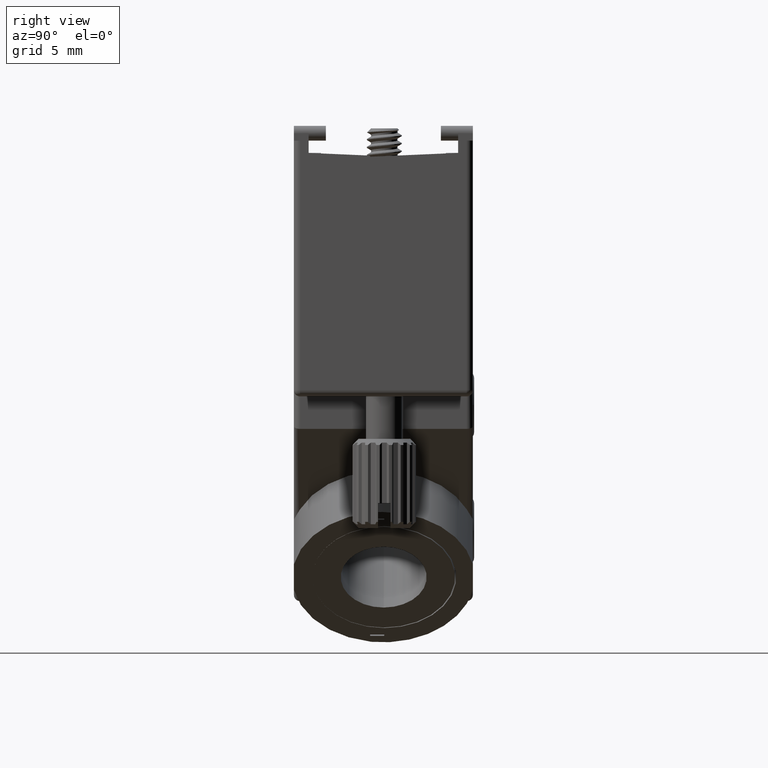
[diagram: clean part render]
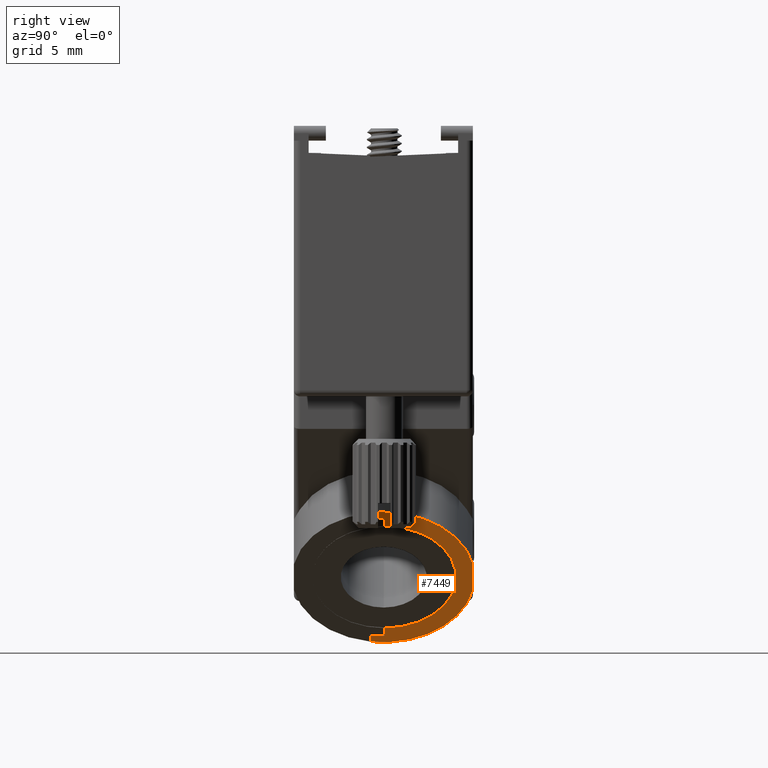
[diagram: same view with one face highlighted and labeled with its STEP entity id]
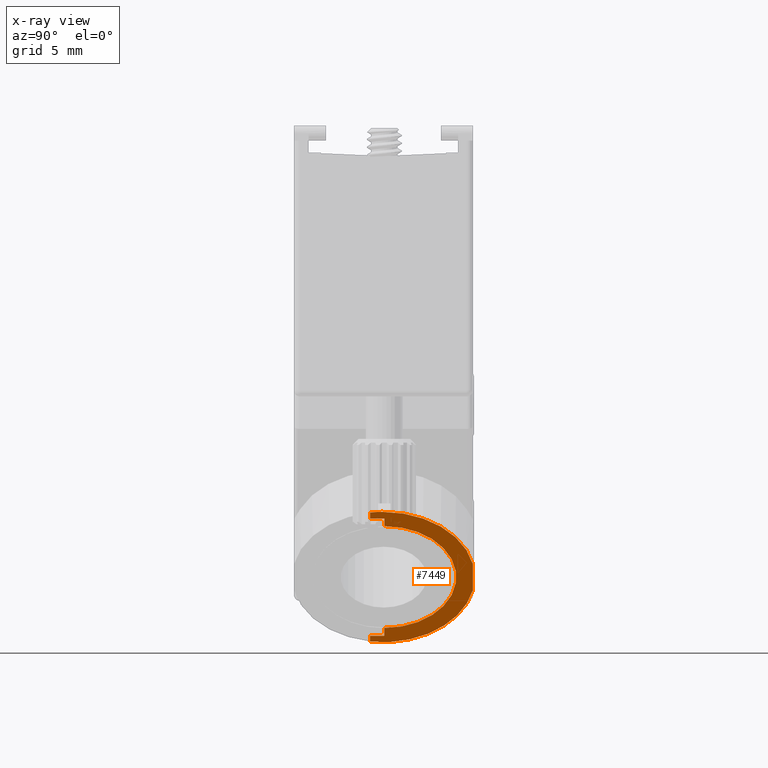
[diagram: x-ray of the same camera — body ghosted, the highlighted face saturated]
A machine part, right view. The second image highlights one B-rep face of the part: STEP entity #7449.
The next image is the same camera in x-ray: the body ghosted, the highlighted face saturated — about 2% of this face is hidden behind the body in this view.
In plain terms, the highlighted planar face has unit normal (0.7071, -0, -0.7071).
Its self-contained STEP definition (entity closure, byte-faithful):
#493 = EDGE_CURVE ( 'NONE', #13416, #18807, #17973, .T. ) ;
#692 = CARTESIAN_POINT ( 'NONE',  ( -2.639087296526004156, -1.149999999999999911, -40.26966991411011776 ) ) ;
#824 = CARTESIAN_POINT ( 'NONE',  ( -7.412058069535230942, -1.000000000000000000, -35.49669914110096869 ) ) ;
#857 = LINE ( 'NONE', #2657, #21343 ) ;
#877 = LINE ( 'NONE', #1313, #4375 ) ;
#1205 = DIRECTION ( 'NONE',  ( -0.7071067811865482389, 0.000000000000000000, 0.7071067811865469066 ) ) ;
#1313 = CARTESIAN_POINT ( 'NONE',  ( -2.108757210636087898, 0.000000000000000000, -40.80000000000003268 ) ) ;
#1330 = ORIENTED_EDGE ( 'NONE', *, *, #19518, .T. ) ;
#1753 = CARTESIAN_POINT ( 'NONE',  ( -2.639087296526004156, -1.149999999999999911, -40.26966991411011776 ) ) ;
#1777 = ORIENTED_EDGE ( 'NONE', *, *, #19070, .T. ) ;
#2306 = CARTESIAN_POINT ( 'NONE',  ( -3.275483399593930756, -1.149999999999999911, -39.63327381104227243 ) ) ;
#2657 = CARTESIAN_POINT ( 'NONE',  ( -2.108757210636087898, 0.000000000000000000, -40.80000000000003268 ) ) ;
#2731 = CARTESIAN_POINT ( 'NONE',  ( -7.412058069535230942, -1.000000000000000000, -35.49669914110096869 ) ) ;
#2882 = DIRECTION ( 'NONE',  ( -0.7071067811865443531, 0.000000000000000000, 0.7071067811865506814 ) ) ;
#3372 = VERTEX_POINT ( 'NONE', #15130 ) ;
#3490 = DIRECTION ( 'NONE',  ( -0.7071067811865482389, 0.000000000000000000, 0.7071067811865467956 ) ) ;
#3741 = CARTESIAN_POINT ( 'NONE',  ( -7.412058069535247817, -1.149999999999999911, -35.49669914110099000 ) ) ;
#3892 = EDGE_CURVE ( 'NONE', #9477, #12592, #11423, .T. ) ;
#3899 = CARTESIAN_POINT ( 'NONE',  ( -6.356714523574955145, -8.350000000000003197, -36.55204268706123827 ) ) ;
#3917 = LINE ( 'NONE', #17428, #6928 ) ;
#4157 = VECTOR ( 'NONE', #7585, 1000.000000000000227 ) ;
#4218 = DIRECTION ( 'NONE',  ( 0.7071067811865484609, 0.000000000000000000, -0.7071067811865465735 ) ) ;
#4254 = CARTESIAN_POINT ( 'NONE',  ( -12.18502884254445995, -1.149999999999999911, -30.72372836809178054 ) ) ;
#4356 = DIRECTION ( 'NONE',  ( -0.7071067811865469066, 0.000000000000000000, -0.7071067811865482389 ) ) ;
#4375 = VECTOR ( 'NONE', #1205, 1000.000000000000000 ) ;
#5085 = DIRECTION ( 'NONE',  ( -0.7071067811865485719, 0.000000000000000000, 0.7071067811865464625 ) ) ;
#5161 = CARTESIAN_POINT ( 'NONE',  ( -2.639087296526004156, -1.149999999999999911, -40.26966991411011776 ) ) ;
#5185 = CARTESIAN_POINT ( 'NONE',  ( -12.71535892843434645, -1.000000000000000000, -30.19339828220186561 ) ) ;
#5426 = DIRECTION ( 'NONE',  ( 0.7071067811865467956, 0.000000000000000000, 0.7071067811865483499 ) ) ;
#5683 = DIRECTION ( 'NONE',  ( -0.7071067811865467956, -0.000000000000000000, -0.7071067811865483499 ) ) ;
#6253 = CIRCLE ( 'NONE', #9128, 7.500000000000002665 ) ;
#6928 = VECTOR ( 'NONE', #20926, 1000.000000000000000 ) ;
#7003 = AXIS2_PLACEMENT_3D ( 'NONE', #824, #5683, #9077 ) ;
#7108 = DIRECTION ( 'NONE',  ( -0.7071067811865467956, -0.000000000000000000, -0.7071067811865483499 ) ) ;
#7143 = VERTEX_POINT ( 'NONE', #21943 ) ;
#7250 = EDGE_CURVE ( 'NONE', #3372, #12592, #877, .T. ) ;
#7449 = ADVANCED_FACE ( 'NONE', ( #11360 ), #19791, .T. ) ;
#7473 = LINE ( 'NONE', #692, #4157 ) ;
#7585 = DIRECTION ( 'NONE',  ( -0.7071067811865964226, 0.000000000000000000, 0.7071067811864986119 ) ) ;
#7632 = CARTESIAN_POINT ( 'NONE',  ( -2.639087296526004156, 0.000000000000000000, -40.26966991411011776 ) ) ;
#7753 = DIRECTION ( 'NONE',  ( -0.7071067811865482389, 0.000000000000000000, 0.7071067811865469066 ) ) ;
#8217 = ORIENTED_EDGE ( 'NONE', *, *, #493, .T. ) ;
#8813 = ORIENTED_EDGE ( 'NONE', *, *, #3892, .T. ) ;
#9063 = EDGE_LOOP ( 'NONE', ( #8813, #14877, #20217, #1330, #11082, #1777, #13500, #16016, #15075, #8217, #17093 ) ) ;
#9077 = DIRECTION ( 'NONE',  ( -0.7071067811865482389, 0.000000000000000000, 0.7071067811865467956 ) ) ;
#9128 = AXIS2_PLACEMENT_3D ( 'NONE', #2731, #16358, #4218 ) ;
#9148 = EDGE_CURVE ( 'NONE', #13416, #19715, #21490, .T. ) ;
#9438 = VERTEX_POINT ( 'NONE', #3899 ) ;
#9445 = AXIS2_PLACEMENT_3D ( 'NONE', #21072, #7108, #3490 ) ;
#9477 = VERTEX_POINT ( 'NONE', #1753 ) ;
#9508 = DIRECTION ( 'NONE',  ( -0.000000000000000000, 1.000000000000000000, -0.000000000000000000 ) ) ;
#9725 = DIRECTION ( 'NONE',  ( -0.000000000000000000, 1.000000000000000000, -0.000000000000000000 ) ) ;
#9856 = CIRCLE ( 'NONE', #9445, 7.500000000000005329 ) ;
#9972 = VECTOR ( 'NONE', #9725, 1000.000000000000000 ) ;
#10048 = VECTOR ( 'NONE', #2882, 1000.000000000000000 ) ;
#10606 = EDGE_CURVE ( 'NONE', #19715, #20246, #21995, .T. ) ;
#11082 = ORIENTED_EDGE ( 'NONE', *, *, #14323, .T. ) ;
#11124 = AXIS2_PLACEMENT_3D ( 'NONE', #19904, #4356, #11241 ) ;
#11241 = DIRECTION ( 'NONE',  ( -0.7071067811865482389, 0.000000000000000000, 0.7071067811865469066 ) ) ;
#11360 = FACE_OUTER_BOUND ( 'NONE', #9063, .T. ) ;
#11423 = LINE ( 'NONE', #5161, #14771 ) ;
#11795 = VERTEX_POINT ( 'NONE', #21970 ) ;
#12592 = VERTEX_POINT ( 'NONE', #7632 ) ;
#12937 = CARTESIAN_POINT ( 'NONE',  ( -11.54863273947655422, -1.149999999999999911, -31.36012447115968982 ) ) ;
#13315 = AXIS2_PLACEMENT_3D ( 'NONE', #3741, #5426, #5085 ) ;
#13416 = VERTEX_POINT ( 'NONE', #12937 ) ;
#13472 = CIRCLE ( 'NONE', #7003, 7.500000000000005329 ) ;
#13500 = ORIENTED_EDGE ( 'NONE', *, *, #18405, .F. ) ;
#14323 = EDGE_CURVE ( 'NONE', #11795, #18961, #13472, .T. ) ;
#14612 = CARTESIAN_POINT ( 'NONE',  ( -11.40721138323925210, -1.149999999999999911, -31.50154582739699549 ) ) ;
#14771 = VECTOR ( 'NONE', #9508, 1000.000000000000000 ) ;
#14853 = EDGE_CURVE ( 'NONE', #9477, #18807, #7473, .T. ) ;
#14877 = ORIENTED_EDGE ( 'NONE', *, *, #7250, .F. ) ;
#15075 = ORIENTED_EDGE ( 'NONE', *, *, #9148, .F. ) ;
#15124 = CARTESIAN_POINT ( 'NONE',  ( -12.18502884254445995, 0.000000000000000000, -30.72372836809178054 ) ) ;
#15130 = CARTESIAN_POINT ( 'NONE',  ( -2.156109059128062277, 0.000000000000000000, -40.75264815150812581 ) ) ;
#16016 = ORIENTED_EDGE ( 'NONE', *, *, #10606, .F. ) ;
#16358 = DIRECTION ( 'NONE',  ( 0.7071067811865467956, 0.000000000000000000, 0.7071067811865483499 ) ) ;
#17093 = ORIENTED_EDGE ( 'NONE', *, *, #14853, .F. ) ;
#17428 = CARTESIAN_POINT ( 'NONE',  ( -2.108757210636087898, -8.349999999999999645, -40.80000000000003268 ) ) ;
#17973 = CIRCLE ( 'NONE', #13315, 5.849999999999996092 ) ;
#18261 = CARTESIAN_POINT ( 'NONE',  ( -12.18502884254445995, -1.149999999999999911, -30.72372836809178054 ) ) ;
#18405 = EDGE_CURVE ( 'NONE', #20246, #7143, #857, .T. ) ;
#18807 = VERTEX_POINT ( 'NONE', #2306 ) ;
#18961 = VERTEX_POINT ( 'NONE', #5185 ) ;
#19070 = EDGE_CURVE ( 'NONE', #18961, #7143, #9856, .T. ) ;
#19518 = EDGE_CURVE ( 'NONE', #9438, #11795, #3917, .T. ) ;
#19715 = VERTEX_POINT ( 'NONE', #4254 ) ;
#19791 = PLANE ( 'NONE',  #11124 ) ;
#19904 = CARTESIAN_POINT ( 'NONE',  ( -2.108757210636087898, -8.349999999999999645, -40.80000000000003268 ) ) ;
#20217 = ORIENTED_EDGE ( 'NONE', *, *, #20433, .F. ) ;
#20246 = VERTEX_POINT ( 'NONE', #15124 ) ;
#20433 = EDGE_CURVE ( 'NONE', #9438, #3372, #6253, .T. ) ;
#20926 = DIRECTION ( 'NONE',  ( -0.7071067811865482389, 0.000000000000000000, 0.7071067811865469066 ) ) ;
#21072 = CARTESIAN_POINT ( 'NONE',  ( -7.412058069535230942, -1.000000000000000000, -35.49669914110096869 ) ) ;
#21343 = VECTOR ( 'NONE', #7753, 1000.000000000000000 ) ;
#21490 = LINE ( 'NONE', #14612, #10048 ) ;
#21943 = CARTESIAN_POINT ( 'NONE',  ( -12.66800707994239872, 0.000000000000000000, -30.24075013069381512 ) ) ;
#21970 = CARTESIAN_POINT ( 'NONE',  ( -8.467401615495505851, -8.350000000000003197, -34.44135559514069911 ) ) ;
#21995 = LINE ( 'NONE', #18261, #9972 ) ;